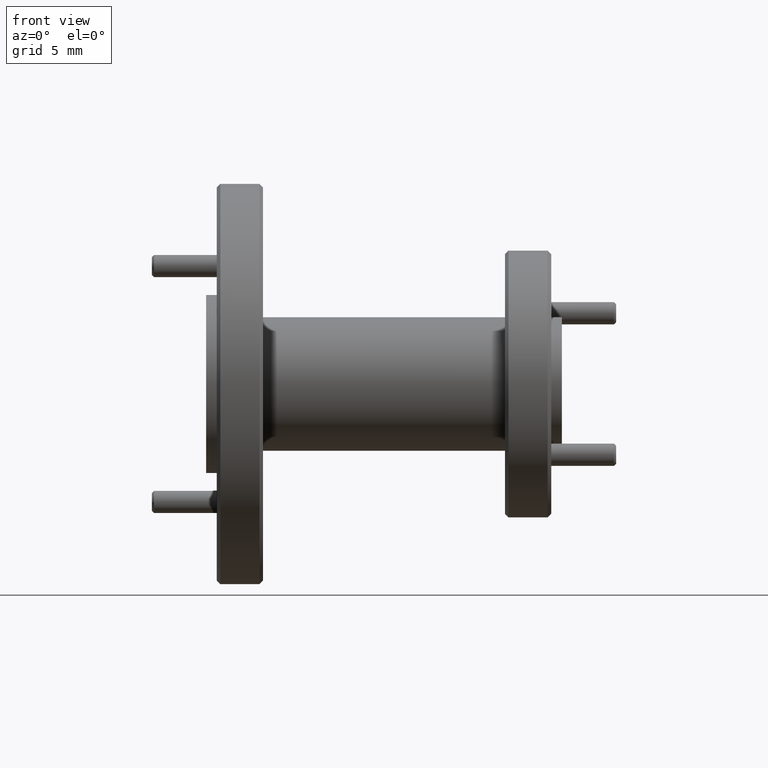
[diagram: clean part render]
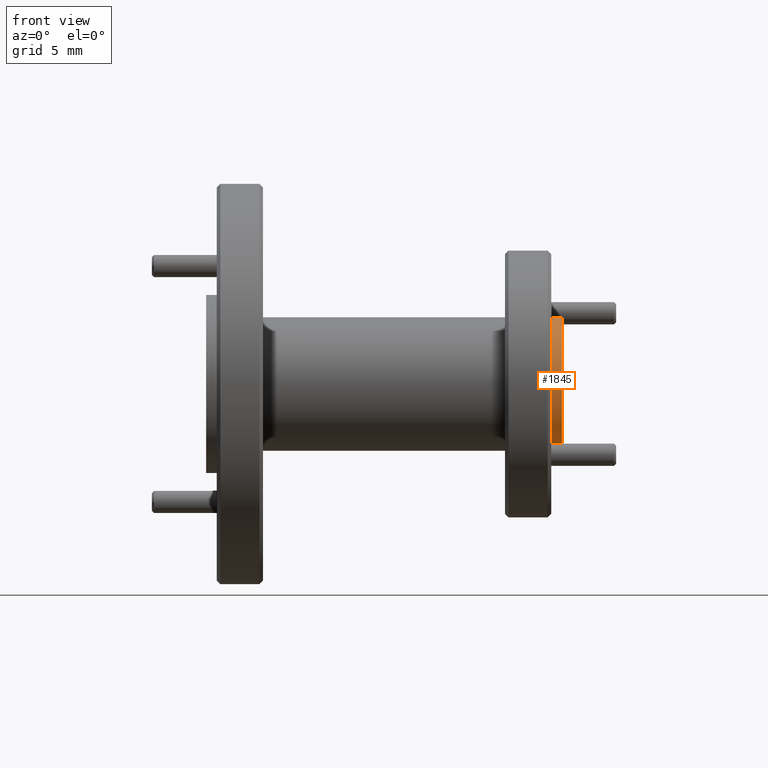
[diagram: same view with one face highlighted and labeled with its STEP entity id]
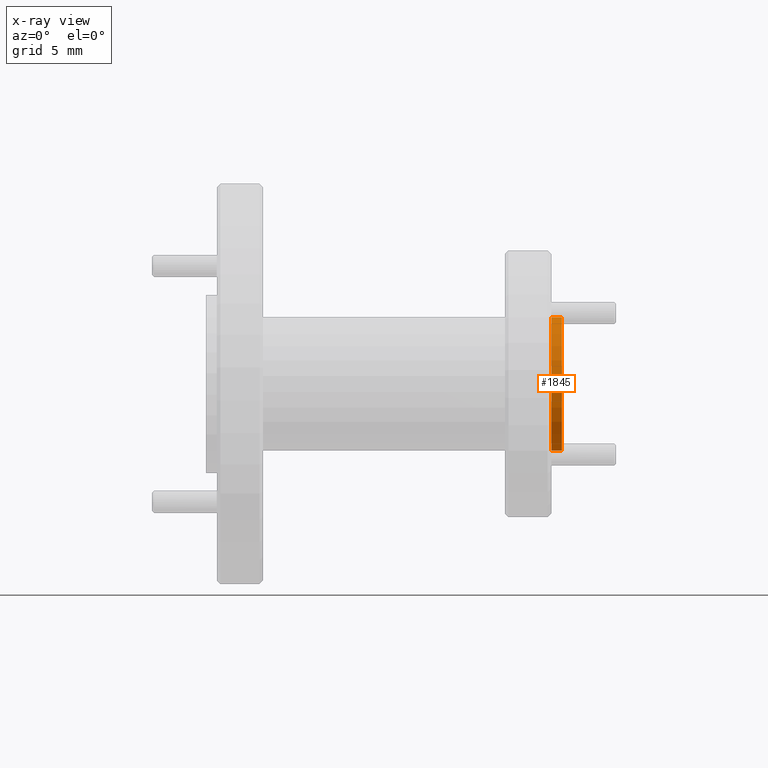
[diagram: x-ray of the same camera — body ghosted, the highlighted face saturated]
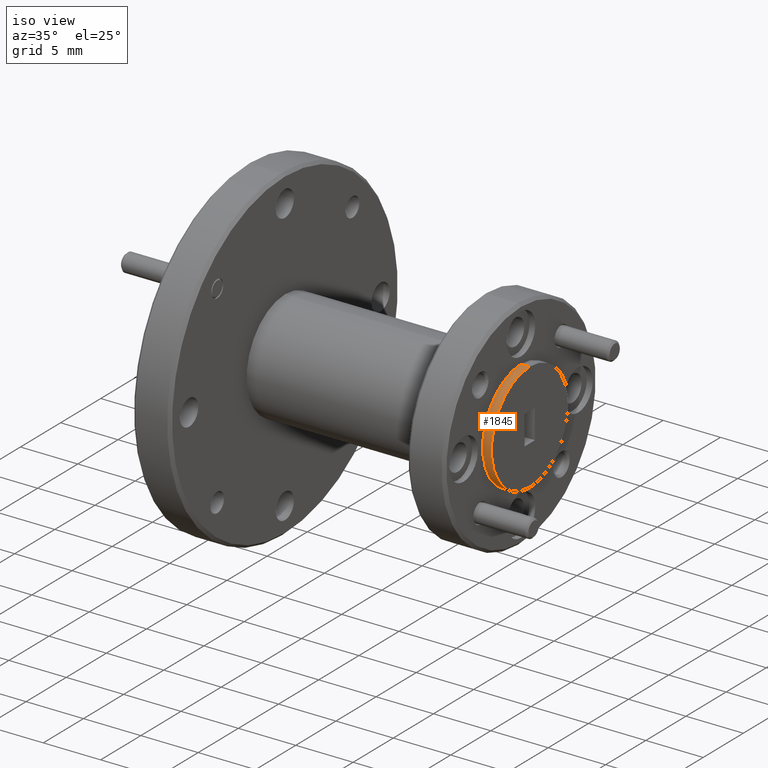
[diagram: same view with one face highlighted and labeled with its STEP entity id]
A machine part, front view. The second image highlights one B-rep face of the part: STEP entity #1845.
The next image is the same camera in x-ray: the body ghosted, the highlighted face saturated — about 0% of this face is hidden behind the body in this view.
A second angle (iso view) of the same face is appended — the face is thin or edge-on in the first view.
In plain terms, the highlighted cylindrical surface (partial cylindrical patch) has radius 4.7625 mm, axis along (-1, 0, 0).
Its self-contained STEP definition (entity closure, byte-faithful):
#256 = CIRCLE ( 'NONE', #1629, 0.1874999999999999700 ) ;
#437 = EDGE_CURVE ( 'NONE', #2298, #792, #256, .T. ) ;
#538 = ORIENTED_EDGE ( 'NONE', *, *, #1948, .F. ) ;
#546 = AXIS2_PLACEMENT_3D ( 'NONE', #1575, #3680, #1606 ) ;
#625 = DIRECTION ( 'NONE',  ( -1.000000000000000000, 1.598615139904834900E-061, 1.956366136326174500E-050 ) ) ;
#697 = LINE ( 'NONE', #1983, #3625 ) ;
#716 = ORIENTED_EDGE ( 'NONE', *, *, #1904, .T. ) ;
#727 = VERTEX_POINT ( 'NONE', #1589 ) ;
#756 = AXIS2_PLACEMENT_3D ( 'NONE', #2467, #625, #3329 ) ;
#792 = VERTEX_POINT ( 'NONE', #3461 ) ;
#1075 = CIRCLE ( 'NONE', #546, 0.1874999999999999700 ) ;
#1131 = CARTESIAN_POINT ( 'NONE',  ( -1.156036104178505700, 0.8711428545117682100, 0.4536954922081256600 ) ) ;
#1318 = CARTESIAN_POINT ( 'NONE',  ( -2.126036104178505900, 0.8711428545117682100, 0.07869549220812564700 ) ) ;
#1506 = CARTESIAN_POINT ( 'NONE',  ( -1.126036104178505600, 0.8711428545117682100, 0.07869549220812564700 ) ) ;
#1550 = CARTESIAN_POINT ( 'NONE',  ( -1.126036104178505600, 0.8711428545117682100, 0.2661954922081256600 ) ) ;
#1575 = CARTESIAN_POINT ( 'NONE',  ( -1.156036104178505700, 0.8711428545117682100, 0.2661954922081256600 ) ) ;
#1589 = CARTESIAN_POINT ( 'NONE',  ( -1.156036104178505700, 0.8711428545117682100, 0.07869549220812564700 ) ) ;
#1606 = DIRECTION ( 'NONE',  ( 0.0000000000000000000, 0.0000000000000000000, 1.000000000000000000 ) ) ;
#1629 = AXIS2_PLACEMENT_3D ( 'NONE', #1550, #3367, #1925 ) ;
#1641 = DIRECTION ( 'NONE',  ( -1.000000000000000000, 1.598615139904834900E-061, 1.956366136326174300E-050 ) ) ;
#1674 = DIRECTION ( 'NONE',  ( -1.000000000000000000, 1.598615139904834900E-061, 1.956366136326174300E-050 ) ) ;
#1845 = ADVANCED_FACE ( 'NONE', ( #3812 ), #2523, .T. ) ;
#1904 = EDGE_CURVE ( 'NONE', #792, #3306, #697, .T. ) ;
#1925 = DIRECTION ( 'NONE',  ( 0.0000000000000000000, 0.0000000000000000000, 1.000000000000000000 ) ) ;
#1948 = EDGE_CURVE ( 'NONE', #2298, #727, #3859, .T. ) ;
#1983 = CARTESIAN_POINT ( 'NONE',  ( -2.126036104178505900, 0.8711428545117682100, 0.4536954922081256600 ) ) ;
#2298 = VERTEX_POINT ( 'NONE', #1506 ) ;
#2372 = EDGE_CURVE ( 'NONE', #3306, #727, #1075, .T. ) ;
#2429 = VECTOR ( 'NONE', #1641, 39.37007874015748100 ) ;
#2467 = CARTESIAN_POINT ( 'NONE',  ( -2.126036104178505900, 0.8711428545117682100, 0.2661954922081256600 ) ) ;
#2523 = CYLINDRICAL_SURFACE ( 'NONE', #756, 0.1874999999999999700 ) ;
#2654 = ORIENTED_EDGE ( 'NONE', *, *, #2372, .T. ) ;
#2677 = ORIENTED_EDGE ( 'NONE', *, *, #437, .T. ) ;
#2739 = EDGE_LOOP ( 'NONE', ( #538, #2677, #716, #2654 ) ) ;
#3306 = VERTEX_POINT ( 'NONE', #1131 ) ;
#3329 = DIRECTION ( 'NONE',  ( 0.0000000000000000000, 0.0000000000000000000, 1.000000000000000000 ) ) ;
#3367 = DIRECTION ( 'NONE',  ( -1.000000000000000000, 1.598615139904834900E-061, 1.956366136326174500E-050 ) ) ;
#3461 = CARTESIAN_POINT ( 'NONE',  ( -1.126036104178505600, 0.8711428545117682100, 0.4536954922081256600 ) ) ;
#3625 = VECTOR ( 'NONE', #1674, 39.37007874015748100 ) ;
#3680 = DIRECTION ( 'NONE',  ( 1.000000000000000000, -1.598615139904834900E-061, -1.956366136326174500E-050 ) ) ;
#3812 = FACE_OUTER_BOUND ( 'NONE', #2739, .T. ) ;
#3859 = LINE ( 'NONE', #1318, #2429 ) ;